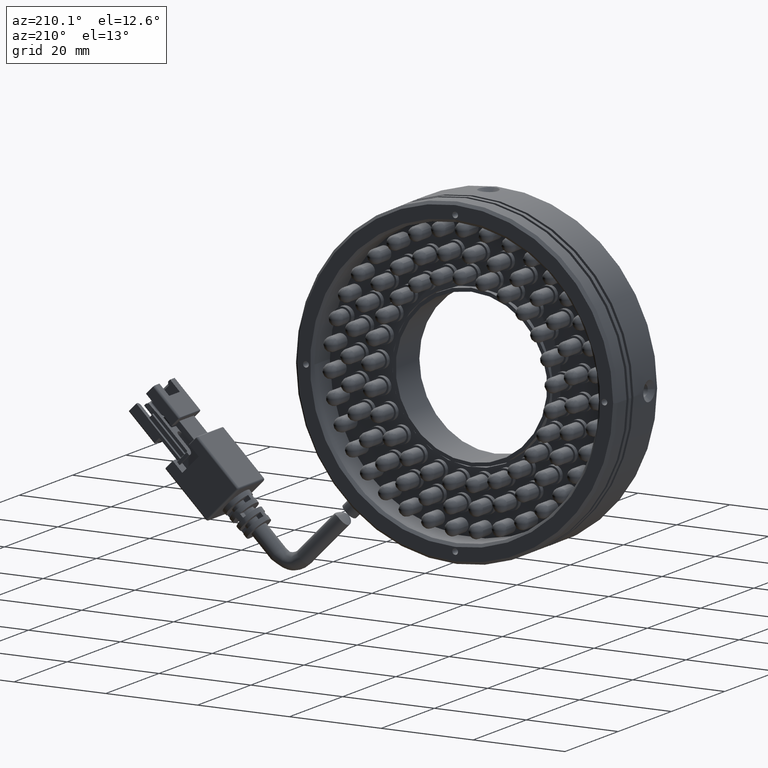
[diagram: clean part render]
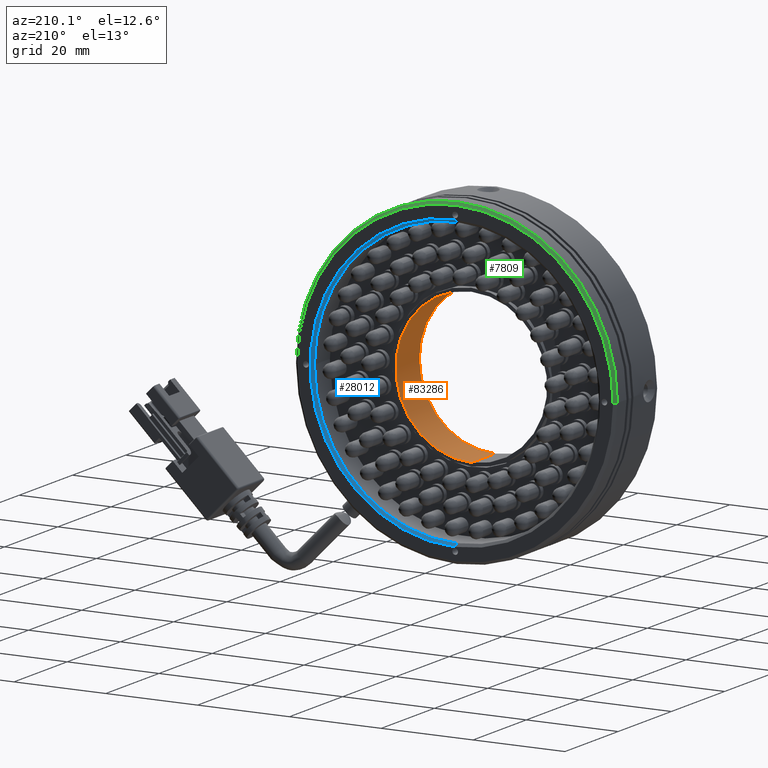
[diagram: same view with three faces highlighted in distinct colors, each labeled with its STEP entity id]
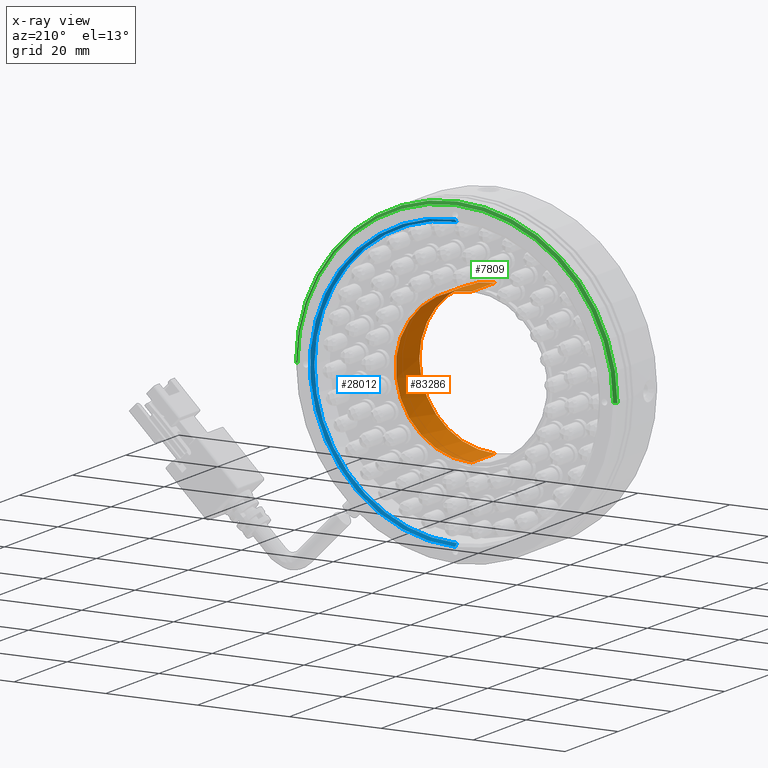
[diagram: x-ray of the same camera — body ghosted, the three highlighted faces saturated]
A machine part, auxiliary view with three faces highlighted in distinct colors.
The next image is the same camera in x-ray (body ghosted, the three faces saturated) — at least one of them is partly hidden behind the body in this view.
Their STEP definitions:

[orange] entity #83286 — the highlighted cylindrical surface (partial cylindrical patch) has radius 16.5 mm, axis along (-0, 1, -0).
#377 = DIRECTION ( 'NONE',  ( 0.0000000000000000000, 0.0000000000000000000, -1.000000000000000000 ) ) ;
#1835 = EDGE_CURVE ( 'NONE', #79799, #40848, #19418, .T. ) ;
#11082 = ORIENTED_EDGE ( 'NONE', *, *, #1835, .F. ) ;
#11252 = CARTESIAN_POINT ( 'NONE',  ( -24.92313932795383400, 5.620185881597988600, 16.50000000000000700 ) ) ;
#12874 = FACE_OUTER_BOUND ( 'NONE', #68535, .T. ) ;
#13082 = DIRECTION ( 'NONE',  ( 0.0000000000000000000, 0.0000000000000000000, 1.000000000000000000 ) ) ;
#13358 = DIRECTION ( 'NONE',  ( 0.0000000000000000000, -1.000000000000000000, 0.0000000000000000000 ) ) ;
#13655 = CARTESIAN_POINT ( 'NONE',  ( -24.92313932795383400, 5.620185881597988600, 0.0000000000000000000 ) ) ;
#14133 = AXIS2_PLACEMENT_3D ( 'NONE', #78903, #39620, #377 ) ;
#16679 = CARTESIAN_POINT ( 'NONE',  ( -24.92313932795383000, 5.620185881597988600, -16.50000000000000700 ) ) ;
#16772 = AXIS2_PLACEMENT_3D ( 'NONE', #64390, #25071, #70962 ) ;
#18421 = DIRECTION ( 'NONE',  ( -0.0000000000000000000, 1.000000000000000000, -0.0000000000000000000 ) ) ;
#19418 = CIRCLE ( 'NONE', #33014, 16.50000000000000700 ) ;
#20035 = CYLINDRICAL_SURFACE ( 'NONE', #35821, 16.50000000000000700 ) ;
#20340 = CARTESIAN_POINT ( 'NONE',  ( -24.92313932795383400, -3.279814118401988700, 16.50000000000000700 ) ) ;
#20758 = ORIENTED_EDGE ( 'NONE', *, *, #81218, .T. ) ;
#22490 = LINE ( 'NONE', #51074, #55324 ) ;
#23843 = LINE ( 'NONE', #31946, #37092 ) ;
#25071 = DIRECTION ( 'NONE',  ( -0.0000000000000000000, -1.000000000000000000, -0.0000000000000000000 ) ) ;
#26380 = ORIENTED_EDGE ( 'NONE', *, *, #70832, .F. ) ;
#26735 = VERTEX_POINT ( 'NONE', #69959 ) ;
#28837 = DIRECTION ( 'NONE',  ( 0.0000000000000000000, 0.0000000000000000000, 1.000000000000000000 ) ) ;
#31908 = CIRCLE ( 'NONE', #16772, 16.50000000000000700 ) ;
#31946 = CARTESIAN_POINT ( 'NONE',  ( -24.92313932795383000, 45.88112954314367200, -16.50000000000000700 ) ) ;
#33014 = AXIS2_PLACEMENT_3D ( 'NONE', #13655, #13358, #13082 ) ;
#35134 = DIRECTION ( 'NONE',  ( -0.0000000000000000000, 1.000000000000000000, -0.0000000000000000000 ) ) ;
#35821 = AXIS2_PLACEMENT_3D ( 'NONE', #68141, #35134, #28837 ) ;
#37092 = VECTOR ( 'NONE', #77796, 1000.000000000000000 ) ;
#38607 = EDGE_CURVE ( 'NONE', #63825, #46753, #51157, .T. ) ;
#39620 = DIRECTION ( 'NONE',  ( -0.0000000000000000000, -1.000000000000000000, -0.0000000000000000000 ) ) ;
#40848 = VERTEX_POINT ( 'NONE', #11252 ) ;
#45184 = CARTESIAN_POINT ( 'NONE',  ( -8.423139327953826700, -3.279814118401988700, 0.0000000000000000000 ) ) ;
#46753 = VERTEX_POINT ( 'NONE', #20340 ) ;
#51074 = CARTESIAN_POINT ( 'NONE',  ( -24.92313932795383400, 45.88112954314367200, 16.50000000000000700 ) ) ;
#51157 = CIRCLE ( 'NONE', #14133, 16.50000000000000700 ) ;
#55324 = VECTOR ( 'NONE', #18421, 1000.000000000000000 ) ;
#63825 = VERTEX_POINT ( 'NONE', #45184 ) ;
#64390 = CARTESIAN_POINT ( 'NONE',  ( -24.92313932795383400, -3.279814118401988700, 0.0000000000000000000 ) ) ;
#68141 = CARTESIAN_POINT ( 'NONE',  ( -24.92313932795383400, 45.88112954314367200, 0.0000000000000000000 ) ) ;
#68535 = EDGE_LOOP ( 'NONE', ( #26380, #20758, #77149, #82485, #11082 ) ) ;
#69959 = CARTESIAN_POINT ( 'NONE',  ( -24.92313932795383000, -3.279814118401988700, -16.50000000000000700 ) ) ;
#70832 = EDGE_CURVE ( 'NONE', #26735, #79799, #23843, .T. ) ;
#70962 = DIRECTION ( 'NONE',  ( 0.0000000000000000000, 0.0000000000000000000, -1.000000000000000000 ) ) ;
#77149 = ORIENTED_EDGE ( 'NONE', *, *, #38607, .T. ) ;
#77796 = DIRECTION ( 'NONE',  ( -0.0000000000000000000, 1.000000000000000000, -0.0000000000000000000 ) ) ;
#78903 = CARTESIAN_POINT ( 'NONE',  ( -24.92313932795383400, -3.279814118401988700, 0.0000000000000000000 ) ) ;
#79799 = VERTEX_POINT ( 'NONE', #16679 ) ;
#81218 = EDGE_CURVE ( 'NONE', #26735, #63825, #31908, .T. ) ;
#81733 = EDGE_CURVE ( 'NONE', #46753, #40848, #22490, .T. ) ;
#82485 = ORIENTED_EDGE ( 'NONE', *, *, #81733, .T. ) ;
#83286 = ADVANCED_FACE ( 'NONE', ( #12874 ), #20035, .F. ) ;

[blue] entity #28012 — the highlighted conical surface has half-angle 45 deg.
#3664 = VERTEX_POINT ( 'NONE', #11337 ) ;
#5171 = EDGE_CURVE ( 'NONE', #3664, #6269, #21723, .T. ) ;
#6268 = DIRECTION ( 'NONE',  ( -2.380166843136657600E-015, 0.7071067811865489100, -0.7071067811865462400 ) ) ;
#6269 = VERTEX_POINT ( 'NONE', #24228 ) ;
#6406 = EDGE_CURVE ( 'NONE', #6269, #80818, #46641, .T. ) ;
#7069 = AXIS2_PLACEMENT_3D ( 'NONE', #12968, #58877, #19545 ) ;
#11337 = CARTESIAN_POINT ( 'NONE',  ( 6.076860672046165300, 11.12018588159798500, -1.044452878145155000E-013 ) ) ;
#12508 = ORIENTED_EDGE ( 'NONE', *, *, #17582, .T. ) ;
#12722 = DIRECTION ( 'NONE',  ( 2.466762448760206700E-015, 0.7071067811865489100, 0.7071067811865462400 ) ) ;
#12968 = CARTESIAN_POINT ( 'NONE',  ( -24.92313932795383400, 11.72018588159799900, -9.729667600217996800E-017 ) ) ;
#14646 = CARTESIAN_POINT ( 'NONE',  ( -24.92313932795383400, 11.12018588159798500, -9.729667600217996800E-017 ) ) ;
#17582 = EDGE_CURVE ( 'NONE', #53344, #3664, #61168, .T. ) ;
#17707 = DIRECTION ( 'NONE',  ( 3.513364001978342500E-015, 0.0000000000000000000, 1.000000000000000000 ) ) ;
#19545 = DIRECTION ( 'NONE',  ( 3.513364001978342500E-015, 0.0000000000000000000, 1.000000000000000000 ) ) ;
#19808 = DIRECTION ( 'NONE',  ( 0.0000000000000000000, -1.000000000000000000, -0.0000000000000000000 ) ) ;
#21282 = LINE ( 'NONE', #45747, #56168 ) ;
#21723 = CIRCLE ( 'NONE', #84579, 31.00000000000000000 ) ;
#22013 = EDGE_CURVE ( 'NONE', #53344, #79612, #21282, .T. ) ;
#22394 = DIRECTION ( 'NONE',  ( -1.000000000000000000, 0.0000000000000000000, 3.488528910189358300E-015 ) ) ;
#24228 = CARTESIAN_POINT ( 'NONE',  ( -24.92313932795372400, 11.12018588159798500, 31.00000000000000000 ) ) ;
#26737 = ORIENTED_EDGE ( 'NONE', *, *, #6406, .T. ) ;
#28012 = ADVANCED_FACE ( 'NONE', ( #64039 ), #55820, .F. ) ;
#29734 = CARTESIAN_POINT ( 'NONE',  ( -24.92313932795394000, 11.12018588159798500, -31.00000000000000000 ) ) ;
#33464 = AXIS2_PLACEMENT_3D ( 'NONE', #14646, #61660, #22394 ) ;
#37127 = DIRECTION ( 'NONE',  ( -1.063079476264913800E-047, 1.000000000000000000, -3.047357506941829000E-033 ) ) ;
#40547 = CIRCLE ( 'NONE', #7069, 31.60000000000000900 ) ;
#45747 = CARTESIAN_POINT ( 'NONE',  ( -24.92313932795394400, 11.72018588159799700, -31.60000000000000900 ) ) ;
#46641 = LINE ( 'NONE', #84688, #79502 ) ;
#53344 = VERTEX_POINT ( 'NONE', #29734 ) ;
#54556 = CARTESIAN_POINT ( 'NONE',  ( -24.92313932795394400, 11.72018588159799900, -31.60000000000000900 ) ) ;
#55384 = EDGE_CURVE ( 'NONE', #79612, #80818, #40547, .T. ) ;
#55820 = CONICAL_SURFACE ( 'NONE', #73120, 31.60000000000000900, 0.7853981633974463900 ) ;
#56168 = VECTOR ( 'NONE', #6268, 1000.000000000000000 ) ;
#56424 = CARTESIAN_POINT ( 'NONE',  ( -24.92313932795383400, 11.72018588159799700, -9.729667600217996800E-017 ) ) ;
#58877 = DIRECTION ( 'NONE',  ( 1.063079476264913800E-047, -1.000000000000000000, 3.047357506941829000E-033 ) ) ;
#58960 = ORIENTED_EDGE ( 'NONE', *, *, #5171, .T. ) ;
#59008 = EDGE_LOOP ( 'NONE', ( #83628, #12508, #58960, #26737, #75505 ) ) ;
#59129 = CARTESIAN_POINT ( 'NONE',  ( -24.92313932795383400, 11.12018588159798500, -9.729667600217996800E-017 ) ) ;
#61168 = CIRCLE ( 'NONE', #33464, 31.00000000000000000 ) ;
#61660 = DIRECTION ( 'NONE',  ( 0.0000000000000000000, -1.000000000000000000, -0.0000000000000000000 ) ) ;
#64039 = FACE_OUTER_BOUND ( 'NONE', #59008, .T. ) ;
#65710 = DIRECTION ( 'NONE',  ( -1.000000000000000000, 0.0000000000000000000, 3.488528910189358300E-015 ) ) ;
#71302 = CARTESIAN_POINT ( 'NONE',  ( -24.92313932795372400, 11.72018588159799900, 31.60000000000000900 ) ) ;
#73120 = AXIS2_PLACEMENT_3D ( 'NONE', #56424, #37127, #17707 ) ;
#75505 = ORIENTED_EDGE ( 'NONE', *, *, #55384, .F. ) ;
#79502 = VECTOR ( 'NONE', #12722, 1000.000000000000000 ) ;
#79612 = VERTEX_POINT ( 'NONE', #54556 ) ;
#80818 = VERTEX_POINT ( 'NONE', #71302 ) ;
#83628 = ORIENTED_EDGE ( 'NONE', *, *, #22013, .F. ) ;
#84579 = AXIS2_PLACEMENT_3D ( 'NONE', #59129, #19808, #65710 ) ;
#84688 = CARTESIAN_POINT ( 'NONE',  ( -24.92313932795372400, 11.72018588159799700, 31.60000000000000900 ) ) ;

[green] entity #7809 — the highlighted conical surface has half-angle 45 deg.
#2833 = LINE ( 'NONE', #80809, #70550 ) ;
#4017 = VERTEX_POINT ( 'NONE', #54565 ) ;
#4670 = ORIENTED_EDGE ( 'NONE', *, *, #14563, .F. ) ;
#6400 = EDGE_LOOP ( 'NONE', ( #65389, #83831, #50976, #4670 ) ) ;
#7809 = ADVANCED_FACE ( 'NONE', ( #15282 ), #74747, .T. ) ;
#13044 = CIRCLE ( 'NONE', #43423, 34.40000000000001300 ) ;
#13991 = DIRECTION ( 'NONE',  ( 0.0000000000000000000, -1.000000000000000000, 0.0000000000000000000 ) ) ;
#14563 = EDGE_CURVE ( 'NONE', #4017, #61549, #2833, .T. ) ;
#15282 = FACE_OUTER_BOUND ( 'NONE', #6400, .T. ) ;
#16899 = CARTESIAN_POINT ( 'NONE',  ( -24.92313932795383400, 11.12018588159799700, -9.729667600217996800E-017 ) ) ;
#22145 = EDGE_CURVE ( 'NONE', #4017, #72019, #13044, .T. ) ;
#23781 = DIRECTION ( 'NONE',  ( 1.000000000000000000, 0.0000000000000000000, -3.488528910189358300E-015 ) ) ;
#25007 = DIRECTION ( 'NONE',  ( -0.0000000000000000000, 1.000000000000000000, -0.0000000000000000000 ) ) ;
#30077 = DIRECTION ( 'NONE',  ( 0.0000000000000000000, -1.000000000000000000, 0.0000000000000000000 ) ) ;
#35105 = AXIS2_PLACEMENT_3D ( 'NONE', #64325, #25007, #70895 ) ;
#39539 = CARTESIAN_POINT ( 'NONE',  ( -59.92313932795384800, 11.12018588159799700, 1.262874789776411200E-013 ) ) ;
#43423 = AXIS2_PLACEMENT_3D ( 'NONE', #53262, #13991, #59901 ) ;
#48092 = EDGE_CURVE ( 'NONE', #72019, #63609, #59219, .T. ) ;
#48105 = DIRECTION ( 'NONE',  ( 0.7071067811865440200, -0.7071067811865511300, -2.466762448760199600E-015 ) ) ;
#49089 = EDGE_CURVE ( 'NONE', #63609, #61549, #79352, .T. ) ;
#50976 = ORIENTED_EDGE ( 'NONE', *, *, #49089, .T. ) ;
#51907 = AXIS2_PLACEMENT_3D ( 'NONE', #16899, #30077, #23781 ) ;
#53262 = CARTESIAN_POINT ( 'NONE',  ( -24.92313932795383400, 11.72018588159799900, -9.729667600217996800E-017 ) ) ;
#54565 = CARTESIAN_POINT ( 'NONE',  ( 9.476860672046179000, 11.72018588159799900, -1.201026911865161400E-013 ) ) ;
#57146 = VECTOR ( 'NONE', #78513, 1000.000000000000000 ) ;
#59219 = LINE ( 'NONE', #39539, #57146 ) ;
#59901 = DIRECTION ( 'NONE',  ( 1.000000000000000000, 0.0000000000000000000, -3.488528910189358300E-015 ) ) ;
#61549 = VERTEX_POINT ( 'NONE', #67144 ) ;
#63609 = VERTEX_POINT ( 'NONE', #81707 ) ;
#64325 = CARTESIAN_POINT ( 'NONE',  ( -24.92313932795383400, 11.12018588159799600, -9.729667600217996800E-017 ) ) ;
#65389 = ORIENTED_EDGE ( 'NONE', *, *, #22145, .T. ) ;
#67144 = CARTESIAN_POINT ( 'NONE',  ( 10.07686067204617500, 11.12018588159799600, -1.179095447356140100E-013 ) ) ;
#70550 = VECTOR ( 'NONE', #48105, 1000.000000000000000 ) ;
#70895 = DIRECTION ( 'NONE',  ( 1.000000000000000000, 4.956352788505162200E-017, -3.488528910189358300E-015 ) ) ;
#72019 = VERTEX_POINT ( 'NONE', #79633 ) ;
#74747 = CONICAL_SURFACE ( 'NONE', #51907, 35.00000000000000700, 0.7853981633974432800 ) ;
#78513 = DIRECTION ( 'NONE',  ( -0.7071067811865440200, -0.7071067811865511300, 2.553358054383748300E-015 ) ) ;
#79352 = CIRCLE ( 'NONE', #35105, 35.00000000000000700 ) ;
#79633 = CARTESIAN_POINT ( 'NONE',  ( -59.32313932795384700, 11.72018588159799900, 1.252041809006099200E-013 ) ) ;
#80809 = CARTESIAN_POINT ( 'NONE',  ( 10.07686067204617500, 11.12018588159799700, -1.221958085326297700E-013 ) ) ;
#81707 = CARTESIAN_POINT ( 'NONE',  ( -59.92313932795384800, 11.12018588159799600, 1.220012151806253900E-013 ) ) ;
#83831 = ORIENTED_EDGE ( 'NONE', *, *, #48092, .T. ) ;